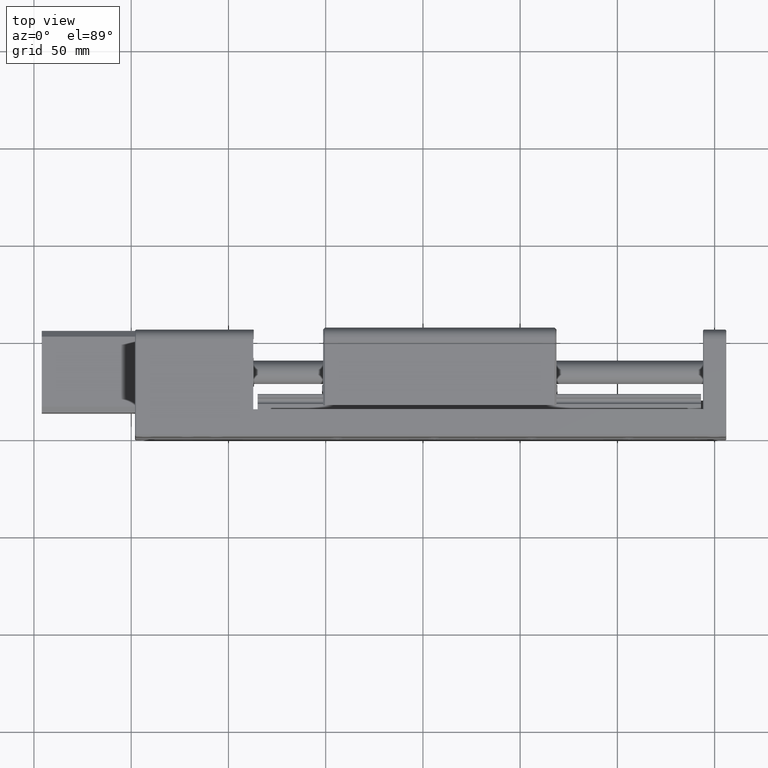
[diagram: clean part render]
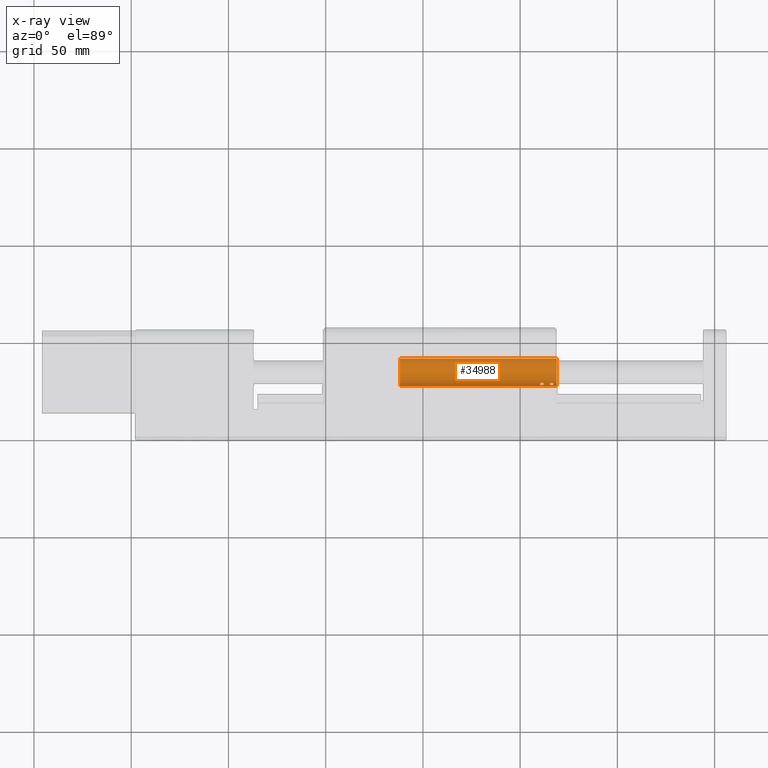
[diagram: x-ray — body ghosted, one internal face saturated and labeled with its STEP entity id]
A machine part, top view, then the same camera in x-ray: the body is ghosted and one INTERNAL B-rep face — a face not visible from any outside direction — is saturated and labeled: STEP entity #34988.
In plain terms, the highlighted cylindrical surface (edge-blend (fillet) strip) has radius 7 mm, axis along (-1, -0, -0).
Its self-contained STEP definition (entity closure, byte-faithful):
#83 = EDGE_CURVE ( 'NONE', #14947, #26413, #4679, .T. ) ;
#509 = CARTESIAN_POINT ( 'NONE',  ( 465.8053870871139000, 28.58629347393295100, 422.5056318390811600 ) ) ;
#1310 = EDGE_LOOP ( 'NONE', ( #20628, #2367, #22518, #17753 ) ) ;
#1816 = CARTESIAN_POINT ( 'NONE',  ( 460.6572256496166900, 27.51018473380949200, 424.3193137667688600 ) ) ;
#2367 = ORIENTED_EDGE ( 'NONE', *, *, #26825, .F. ) ;
#2541 = CARTESIAN_POINT ( 'NONE',  ( 460.4935938664230500, 28.44125099544308100, 422.6873367761253300 ) ) ;
#2585 = ORIENTED_EDGE ( 'NONE', *, *, #15391, .T. ) ;
#3060 = CARTESIAN_POINT ( 'NONE',  ( 462.0351446894488300, 28.28254349618859500, 422.8987717331481200 ) ) ;
#3371 = FACE_BOUND ( 'NONE', #31621, .T. ) ;
#3491 = VERTEX_POINT ( 'NONE', #13107 ) ;
#3801 = EDGE_CURVE ( 'NONE', #22627, #36647, #31921, .T. ) ;
#4033 = CARTESIAN_POINT ( 'NONE',  ( 462.1657882466554400, 27.90780797603556000, 423.4929751941887200 ) ) ;
#4381 = VERTEX_POINT ( 'NONE', #25916 ) ;
#4679 = LINE ( 'NONE', #22322, #30364 ) ;
#5084 = CARTESIAN_POINT ( 'NONE',  ( 467.1596945975856000, 27.93782217350734200, 423.4433306992482900 ) ) ;
#5309 = CARTESIAN_POINT ( 'NONE',  ( 466.6894586917762800, 27.51703469139695100, 424.3023661113861600 ) ) ;
#5554 = CARTESIAN_POINT ( 'NONE',  ( 460.5955946577887500, 28.50449479290712100, 422.6068267630420800 ) ) ;
#5673 = CARTESIAN_POINT ( 'NONE',  ( 462.1398836823450400, 28.12293793776589000, 423.1303045271391200 ) ) ;
#5794 = CARTESIAN_POINT ( 'NONE',  ( 460.1596945975856600, 28.00920422870705200, 423.3196933528937500 ) ) ;
#5959 = ORIENTED_EDGE ( 'NONE', *, *, #20630, .T. ) ;
#6142 = CARTESIAN_POINT ( 'NONE',  ( 465.1596945975856600, 28.01094727418791000, 423.3166743095607700 ) ) ;
#6405 = CARTESIAN_POINT ( 'NONE',  ( 465.6162531206673000, 28.51586128469286400, 422.5924939237694400 ) ) ;
#6535 = CIRCLE ( 'NONE', #33659, 6.999999999999999100 ) ;
#7279 = CARTESIAN_POINT ( 'NONE',  ( 462.1571533918853400, 27.97951796327897600, 423.3720849718390600 ) ) ;
#8741 = B_SPLINE_CURVE_WITH_KNOTS ( 'NONE', 3,
 ( #11393, #17000, #26382, #20009, #38299, #26021, #5309, #14515, #14272, #35441, #32299, #32050, #11269, #32181, #32956, #26761, #9044, #35843, #32699, #17649 ),
 .UNSPECIFIED., .F., .F.,
 ( 4, 2, 2, 2, 2, 2, 2, 2, 2, 4 ),
 ( 0.003446979150428776800, 0.003857310576169353200, 0.004267642001909930000, 0.004677973427650506400, 0.004883139140520720800, 0.005088304853390935300, 0.005498636279131365000, 0.005908967704871794000, 0.006319299130612224600, 0.006729630556352653500 ),
 .UNSPECIFIED. ) ;
#8770 = EDGE_CURVE ( 'NONE', #12277, #3491, #34200, .T. ) ;
#9044 = CARTESIAN_POINT ( 'NONE',  ( 465.2720519833688400, 27.68485715100731800, 423.9207170111266700 ) ) ;
#9231 = CARTESIAN_POINT ( 'NONE',  ( 467.0663454161026500, 28.24575314223127600, 422.9504718288161500 ) ) ;
#9481 = CARTESIAN_POINT ( 'NONE',  ( 466.0847104006782000, 28.63792833185261300, 422.4435320935048700 ) ) ;
#9989 = CARTESIAN_POINT ( 'NONE',  ( 461.3466777693053600, 27.46447227922025600, 424.4359567835745100 ) ) ;
#10135 = EDGE_CURVE ( 'NONE', #26413, #36647, #26399, .T. ) ;
#10524 = CARTESIAN_POINT ( 'NONE',  ( 462.1521082945138200, 27.83799747234092300, 423.6194658549582100 ) ) ;
#10749 = CARTESIAN_POINT ( 'NONE',  ( 460.1826594864462500, 27.79925221275904000, 423.6923800570421600 ) ) ;
#11269 = CARTESIAN_POINT ( 'NONE',  ( 465.8847413902366300, 27.47249800434331500, 424.4144605199566600 ) ) ;
#11393 = CARTESIAN_POINT ( 'NONE',  ( 467.1596945975856000, 27.93782217350734200, 423.4433306992482900 ) ) ;
#11566 = DIRECTION ( 'NONE',  ( 0.0000000000000000000, 1.000000000000000000, 0.0000000000000000000 ) ) ;
#12277 = VERTEX_POINT ( 'NONE', #34314 ) ;
#12358 = CARTESIAN_POINT ( 'NONE',  ( 466.3014558386786300, 28.63842597247495500, 422.4429391369821500 ) ) ;
#12507 = CARTESIAN_POINT ( 'NONE',  ( 465.3379364402534300, 28.31350950437448700, 422.8595377684117100 ) ) ;
#12664 = CYLINDRICAL_SURFACE ( 'NONE', #26806, 6.999999999999999100 ) ;
#12851 = DIRECTION ( 'NONE',  ( -1.000000000000000000, -1.491079996589681900E-025, -1.956422605613762500E-016 ) ) ;
#13107 = CARTESIAN_POINT ( 'NONE',  ( 460.1596945975856000, 27.93782217350731400, 423.4433306992482900 ) ) ;
#13512 = CARTESIAN_POINT ( 'NONE',  ( 462.0772912977058700, 27.71400536304646800, 423.8603736644879500 ) ) ;
#13726 = CARTESIAN_POINT ( 'NONE',  ( 460.1596945975856600, 27.86644011830758300, 423.5669680456030100 ) ) ;
#14060 = FACE_BOUND ( 'NONE', #15978, .T. ) ;
#14272 = CARTESIAN_POINT ( 'NONE',  ( 466.4357437390235100, 27.47566565553425400, 424.4069358976535100 ) ) ;
#14494 = CARTESIAN_POINT ( 'NONE',  ( 461.7645511531226800, 28.48013043810163600, 422.6371744613198300 ) ) ;
#14515 = CARTESIAN_POINT ( 'NONE',  ( 466.5024646853120800, 27.48409974624244300, 424.3852206215109400 ) ) ;
#14947 = VERTEX_POINT ( 'NONE', #22927 ) ;
#15088 = CARTESIAN_POINT ( 'NONE',  ( 465.5097843184509000, 28.45237817392711900, 422.6728001779115400 ) ) ;
#15229 = CARTESIAN_POINT ( 'NONE',  ( 465.2721476684749300, 28.23779110880567700, 422.9664056716641800 ) ) ;
#15391 = EDGE_CURVE ( 'NONE', #3491, #12277, #33026, .T. ) ;
#15978 = EDGE_LOOP ( 'NONE', ( #2585, #24880 ) ) ;
#15983 = CARTESIAN_POINT ( 'NONE',  ( 460.9186202408368400, 27.46883471476818200, 424.4239960513300500 ) ) ;
#16506 = CARTESIAN_POINT ( 'NONE',  ( 461.8446605800637600, 27.56583772296208000, 424.1839550147381600 ) ) ;
#17000 = CARTESIAN_POINT ( 'NONE',  ( 467.1596945975854300, 27.86896194884634100, 423.5626001069815600 ) ) ;
#17349 = CARTESIAN_POINT ( 'NONE',  ( 460.1818374928789100, 28.08218893165643600, 423.2019869335305800 ) ) ;
#17392 = DIRECTION ( 'NONE',  ( -1.000000000000000000, -1.491079996589681900E-025, -1.956422605613762500E-016 ) ) ;
#17533 = CARTESIAN_POINT ( 'NONE',  ( 468.6596945975856000, 33.99999999999838000, 426.9433306992483500 ) ) ;
#17649 = CARTESIAN_POINT ( 'NONE',  ( 465.1596945975856000, 27.93782217350731400, 423.4433306992482900 ) ) ;
#17753 = ORIENTED_EDGE ( 'NONE', *, *, #10135, .T. ) ;
#17880 = CARTESIAN_POINT ( 'NONE',  ( 461.2566193285028900, 28.64249854346165600, 422.4380844236886200 ) ) ;
#18028 = CARTESIAN_POINT ( 'NONE',  ( 388.1596945975856000, 40.99999999999838000, 426.9433306992482900 ) ) ;
#18346 = CARTESIAN_POINT ( 'NONE',  ( 465.8719048325264700, 28.60503683313930200, 422.4829738482631600 ) ) ;
#18363 = CARTESIAN_POINT ( 'NONE',  ( 468.6596945975856000, 26.99999999999838000, 426.9433306992483500 ) ) ;
#18859 = CARTESIAN_POINT ( 'NONE',  ( 461.7348404716305500, 27.52895977093398700, 424.2730876310490100 ) ) ;
#20009 = CARTESIAN_POINT ( 'NONE',  ( 467.0489605552141900, 27.68652703705042800, 423.9172920474727600 ) ) ;
#20408 = VERTEX_POINT ( 'NONE', #5084 ) ;
#20572 = CARTESIAN_POINT ( 'NONE',  ( 388.1596945975856000, 33.99999999999838000, 426.9433306992482900 ) ) ;
#20628 = ORIENTED_EDGE ( 'NONE', *, *, #3801, .F. ) ;
#20630 = EDGE_CURVE ( 'NONE', #20408, #4381, #8741, .T. ) ;
#20900 = CARTESIAN_POINT ( 'NONE',  ( 461.3995186131948600, 28.62134080773772700, 422.4629016558503700 ) ) ;
#20966 = CARTESIAN_POINT ( 'NONE',  ( 465.1596945975856000, 27.93782217350731400, 423.4433306992482900 ) ) ;
#21346 = B_SPLINE_CURVE_WITH_KNOTS ( 'NONE', 3,
 ( #20966, #6142, #36011, #15229, #12507, #15088, #6405, #509, #18346, #27202, #9481, #12358, #27343, #33252, #30362, #9231, #33368, #36277 ),
 .UNSPECIFIED., .F., .F.,
 ( 4, 2, 2, 2, 2, 2, 2, 2, 4 ),
 ( 0.0000000000000000000, 0.0004308723938035774800, 0.0008617447876071549600, 0.001292617181410732400, 0.001508053378312623700, 0.001723489575214515000, 0.002154361969018131800, 0.002585234362821748000, 0.003446979150428776800 ),
 .UNSPECIFIED. ) ;
#21403 = CARTESIAN_POINT ( 'NONE',  ( 468.6596945975856000, 26.99999999999837600, 426.9433306992483500 ) ) ;
#22071 = VECTOR ( 'NONE', #24756, 1000.000000000000000 ) ;
#22322 = CARTESIAN_POINT ( 'NONE',  ( 468.6596945975856000, 40.99999999999838000, 426.9433306992483500 ) ) ;
#22458 = CARTESIAN_POINT ( 'NONE',  ( 460.1596945975856000, 27.93782217350731400, 423.4433306992482900 ) ) ;
#22518 = ORIENTED_EDGE ( 'NONE', *, *, #83, .T. ) ;
#22627 = VERTEX_POINT ( 'NONE', #18363 ) ;
#22927 = CARTESIAN_POINT ( 'NONE',  ( 468.6596945975856000, 40.99999999999838000, 426.9433306992483500 ) ) ;
#23573 = DIRECTION ( 'NONE',  ( -1.000000000000000000, -1.491079996589681900E-025, -1.956422605613762500E-016 ) ) ;
#24677 = DIRECTION ( 'NONE',  ( -1.000000000000000000, -1.491079996589681900E-025, -1.956422605613762500E-016 ) ) ;
#24756 = DIRECTION ( 'NONE',  ( -1.000000000000000000, -1.491079996589681900E-025, -1.956422605613762500E-016 ) ) ;
#24850 = CARTESIAN_POINT ( 'NONE',  ( 461.4869503676721400, 27.47865179762922200, 424.3984186550133000 ) ) ;
#24880 = ORIENTED_EDGE ( 'NONE', *, *, #8770, .T. ) ;
#25210 = CARTESIAN_POINT ( 'NONE',  ( 460.3505296036639200, 27.62676540480800800, 424.0462645425525900 ) ) ;
#25916 = CARTESIAN_POINT ( 'NONE',  ( 465.1596945975856000, 27.93782217350731400, 423.4433306992482900 ) ) ;
#26021 = CARTESIAN_POINT ( 'NONE',  ( 466.8015889747493400, 27.55012402397175500, 424.2211971666860700 ) ) ;
#26348 = CARTESIAN_POINT ( 'NONE',  ( 461.6542925912944500, 28.53912409915800600, 422.5634844102749000 ) ) ;
#26382 = CARTESIAN_POINT ( 'NONE',  ( 467.1379005337971100, 27.80306120119806900, 423.6852944348955800 ) ) ;
#26399 = CIRCLE ( 'NONE', #26454, 6.999999999999999100 ) ;
#26413 = VERTEX_POINT ( 'NONE', #18028 ) ;
#26454 = AXIS2_PLACEMENT_3D ( 'NONE', #20572, #23573, #11566 ) ;
#26661 = ORIENTED_EDGE ( 'NONE', *, *, #32445, .T. ) ;
#26761 = CARTESIAN_POINT ( 'NONE',  ( 465.3411912168338100, 27.63295037606322800, 424.0327218560442500 ) ) ;
#26806 = AXIS2_PLACEMENT_3D ( 'NONE', #28078, #12851, #33607 ) ;
#26825 = EDGE_CURVE ( 'NONE', #14947, #22627, #6535, .T. ) ;
#27202 = CARTESIAN_POINT ( 'NONE',  ( 466.0114094292499700, 28.63095693473068000, 422.4518067514999900 ) ) ;
#27343 = CARTESIAN_POINT ( 'NONE',  ( 466.4467799892921100, 28.61077928979085500, 422.4754761969752500 ) ) ;
#28069 = CARTESIAN_POINT ( 'NONE',  ( 460.5396762193928500, 27.54242264284373900, 424.2394804448949200 ) ) ;
#28078 = CARTESIAN_POINT ( 'NONE',  ( 468.6596945975856000, 33.99999999999838000, 426.9433306992483500 ) ) ;
#29243 = CARTESIAN_POINT ( 'NONE',  ( 460.2668965957223000, 28.23049194758952000, 422.9771085865755300 ) ) ;
#29491 = CARTESIAN_POINT ( 'NONE',  ( 460.3298431947003500, 28.30470292224091000, 422.8718732249041100 ) ) ;
#29780 = CARTESIAN_POINT ( 'NONE',  ( 462.1571533918853400, 27.97951796327897600, 423.3720849718390600 ) ) ;
#30362 = CARTESIAN_POINT ( 'NONE',  ( 466.8065417476734100, 28.45442235559054800, 422.6701423925302900 ) ) ;
#30364 = VECTOR ( 'NONE', #24677, 1000.000000000000000 ) ;
#31621 = EDGE_LOOP ( 'NONE', ( #26661, #5959 ) ) ;
#31631 = CARTESIAN_POINT ( 'NONE',  ( 460.2777814807425900, 27.67938467841667100, 423.9320560263564100 ) ) ;
#31921 = LINE ( 'NONE', #21403, #22071 ) ;
#32050 = CARTESIAN_POINT ( 'NONE',  ( 466.0228005909942200, 27.46149705338803700, 424.4437348502442000 ) ) ;
#32181 = CARTESIAN_POINT ( 'NONE',  ( 465.6341584558240400, 27.51596034877070500, 424.3050175092918700 ) ) ;
#32281 = CARTESIAN_POINT ( 'NONE',  ( 460.1596945975856000, 27.93782217350731400, 423.4433306992482900 ) ) ;
#32299 = CARTESIAN_POINT ( 'NONE',  ( 466.2325232698401600, 27.46173129732130700, 424.4431222240623900 ) ) ;
#32399 = CARTESIAN_POINT ( 'NONE',  ( 460.9746560418239500, 28.63206666783165800, 422.4505189291368800 ) ) ;
#32445 = EDGE_CURVE ( 'NONE', #4381, #20408, #21346, .T. ) ;
#32589 = DIRECTION ( 'NONE',  ( 0.0000000000000000000, 1.000000000000000000, 0.0000000000000000000 ) ) ;
#32699 = CARTESIAN_POINT ( 'NONE',  ( 465.1596945975857700, 27.86818316378844400, 423.5639490022702500 ) ) ;
#32956 = CARTESIAN_POINT ( 'NONE',  ( 465.5216111844190400, 27.54873938022452500, 424.2244704292922400 ) ) ;
#33026 = B_SPLINE_CURVE_WITH_KNOTS ( 'NONE', 3,
 ( #32281, #5794, #17349, #29243, #29491, #2541, #5554, #35413, #32399, #17880, #20900, #26348, #14494, #3060, #5673, #29780 ),
 .UNSPECIFIED., .F., .F.,
 ( 4, 2, 2, 2, 2, 2, 2, 4 ),
 ( 0.0000000000000000000, 0.0004206019097720339600, 0.0008412038195440679200, 0.001261805729316101800, 0.001682407639088135800, 0.002103009548860169900, 0.002523611458632203700, 0.003364815278176274700 ),
 .UNSPECIFIED. ) ;
#33252 = CARTESIAN_POINT ( 'NONE',  ( 466.6988908178411700, 28.51797143282303500, 422.5898508835737700 ) ) ;
#33368 = CARTESIAN_POINT ( 'NONE',  ( 467.1596945975856600, 28.08243683363964400, 423.1928507603798300 ) ) ;
#33607 = DIRECTION ( 'NONE',  ( 0.0000000000000000000, 1.000000000000000000, 0.0000000000000000000 ) ) ;
#33659 = AXIS2_PLACEMENT_3D ( 'NONE', #17533, #17392, #32589 ) ;
#33900 = CARTESIAN_POINT ( 'NONE',  ( 461.0622228591333900, 27.45959734465615700, 424.4487005366684700 ) ) ;
#34200 = B_SPLINE_CURVE_WITH_KNOTS ( 'NONE', 3,
 ( #7279, #4033, #10524, #13512, #34431, #16506, #18859, #24850, #9989, #33900, #15983, #1816, #28069, #25210, #31631, #10749, #13726, #22458 ),
 .UNSPECIFIED., .F., .F.,
 ( 4, 2, 2, 2, 2, 2, 2, 2, 4 ),
 ( 0.003364815278176274700, 0.003785417187948321100, 0.004206019097720367500, 0.004626621007492413800, 0.005047222917264461100, 0.005467824827036506600, 0.005888426736808553800, 0.006309028646580600200, 0.006729630556352646600 ),
 .UNSPECIFIED. ) ;
#34314 = CARTESIAN_POINT ( 'NONE',  ( 462.1571533918853400, 27.97951796327897600, 423.3720849718390600 ) ) ;
#34431 = CARTESIAN_POINT ( 'NONE',  ( 462.0144853685708900, 27.65761389315583000, 423.9790876513129100 ) ) ;
#34651 = FACE_OUTER_BOUND ( 'NONE', #1310, .T. ) ;
#34988 = ADVANCED_FACE ( 'NONE', ( #34651, #3371, #14060 ), #12664, .F. ) ;
#35413 = CARTESIAN_POINT ( 'NONE',  ( 460.8356649030039300, 28.60050985821255800, 422.4878453072111000 ) ) ;
#35435 = CARTESIAN_POINT ( 'NONE',  ( 388.1596945975856000, 26.99999999999838000, 426.9433306992483500 ) ) ;
#35441 = CARTESIAN_POINT ( 'NONE',  ( 466.3011083322612100, 27.46456714803661800, 424.4356714988365400 ) ) ;
#35843 = CARTESIAN_POINT ( 'NONE',  ( 465.1815053517819900, 27.80259045240041300, 423.6861328836213300 ) ) ;
#36011 = CARTESIAN_POINT ( 'NONE',  ( 465.1828931765412600, 28.08575771066614400, 423.1962355411507100 ) ) ;
#36277 = CARTESIAN_POINT ( 'NONE',  ( 467.1596945975856000, 27.93782217350734200, 423.4433306992482900 ) ) ;
#36647 = VERTEX_POINT ( 'NONE', #35435 ) ;
#38299 = CARTESIAN_POINT ( 'NONE',  ( 466.9800438688766300, 27.63421873096950800, 424.0299580986175600 ) ) ;